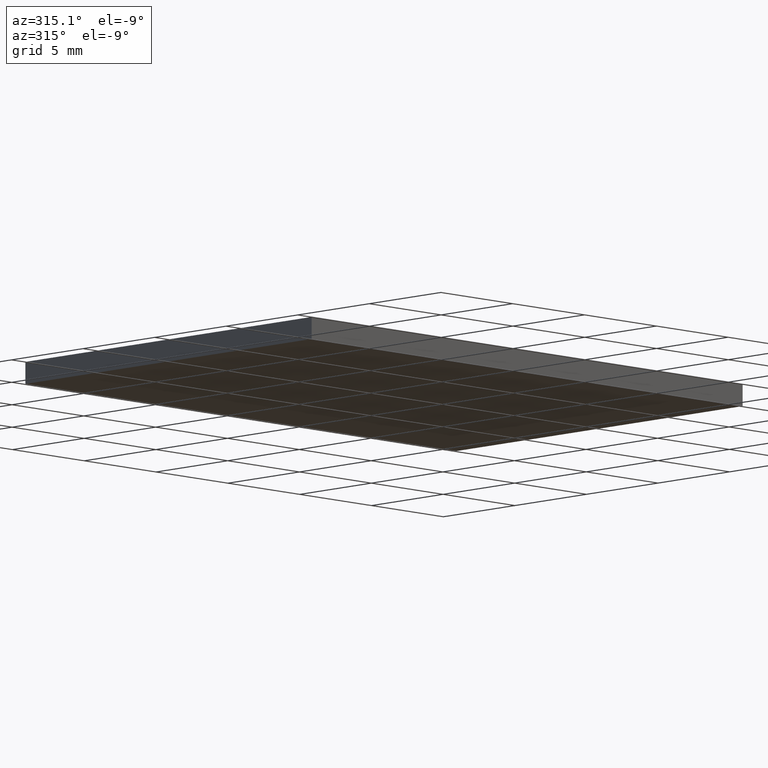
[diagram: clean part render]
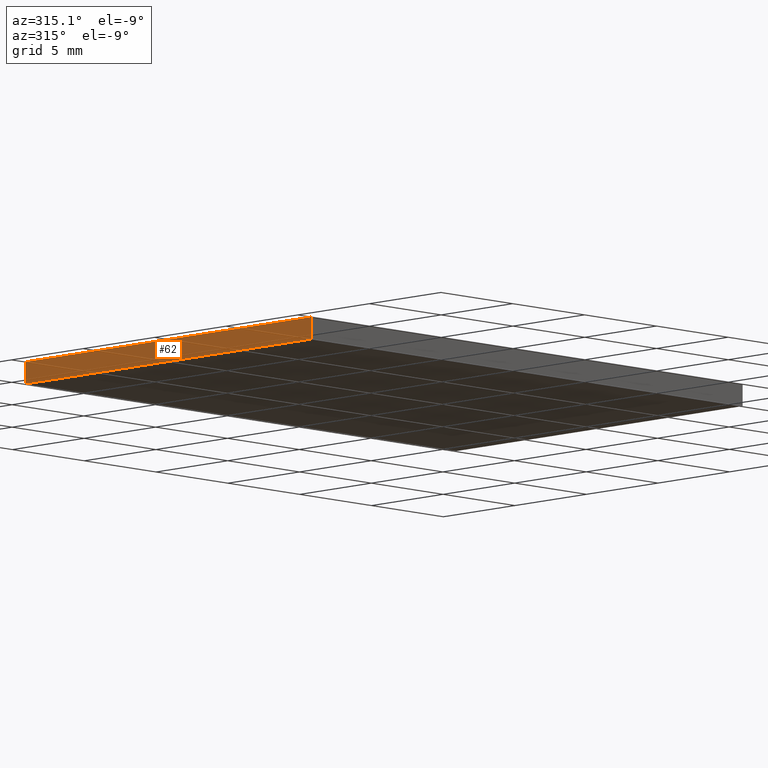
[diagram: same view with one face highlighted and labeled with its STEP entity id]
A machine part, auxiliary view. The second image highlights one B-rep face of the part: STEP entity #62.
In plain terms, the highlighted planar face has unit normal (1, 0, -0).
Its self-contained STEP definition (entity closure, byte-faithful):
#6 = VECTOR ( 'NONE', #92, 1000.000000000000000 ) ;
#9 = ORIENTED_EDGE ( 'NONE', *, *, #57, .T. ) ;
#17 = DIRECTION ( 'NONE',  ( 1.734723475976807100E-016, -1.000000000000000000, 0.0000000000000000000 ) ) ;
#20 = LINE ( 'NONE', #176, #279 ) ;
#21 = EDGE_CURVE ( 'NONE', #289, #79, #159, .T. ) ;
#23 = CARTESIAN_POINT ( 'NONE',  ( -11.75128678603609700, 12.30936728662558900, 1.100000000000000100 ) ) ;
#56 = VECTOR ( 'NONE', #221, 1000.000000000000000 ) ;
#57 = EDGE_CURVE ( 'NONE', #66, #225, #205, .T. ) ;
#62 = ADVANCED_FACE ( 'NONE', ( #303 ), #267, .F. ) ;
#66 = VERTEX_POINT ( 'NONE', #142 ) ;
#67 = ORIENTED_EDGE ( 'NONE', *, *, #21, .F. ) ;
#79 = VERTEX_POINT ( 'NONE', #272 ) ;
#87 = ORIENTED_EDGE ( 'NONE', *, *, #157, .T. ) ;
#92 = DIRECTION ( 'NONE',  ( 1.734723475976807100E-016, -1.000000000000000000, 0.0000000000000000000 ) ) ;
#94 = DIRECTION ( 'NONE',  ( -1.734723475976806800E-016, 1.000000000000000000, 0.0000000000000000000 ) ) ;
#102 = CARTESIAN_POINT ( 'NONE',  ( -11.75128678603609300, -7.690632713374410100, 1.100000000000000100 ) ) ;
#117 = DIRECTION ( 'NONE',  ( 1.000000000000000000, 1.734723475976806800E-016, -0.0000000000000000000 ) ) ;
#119 = CARTESIAN_POINT ( 'NONE',  ( -11.75128678603609300, -7.690632713374410100, 1.100000000000000100 ) ) ;
#142 = CARTESIAN_POINT ( 'NONE',  ( -11.75128678603609700, 12.30936728662558900, 1.100000000000000100 ) ) ;
#144 = EDGE_LOOP ( 'NONE', ( #87, #67, #189, #9 ) ) ;
#157 = EDGE_CURVE ( 'NONE', #225, #79, #20, .T. ) ;
#159 = LINE ( 'NONE', #119, #197 ) ;
#165 = LINE ( 'NONE', #23, #6 ) ;
#176 = CARTESIAN_POINT ( 'NONE',  ( -11.75128678603609700, 12.30936728662558900, 0.0000000000000000000 ) ) ;
#178 = EDGE_CURVE ( 'NONE', #66, #289, #165, .T. ) ;
#189 = ORIENTED_EDGE ( 'NONE', *, *, #178, .F. ) ;
#197 = VECTOR ( 'NONE', #294, 1000.000000000000000 ) ;
#205 = LINE ( 'NONE', #244, #56 ) ;
#221 = DIRECTION ( 'NONE',  ( -0.0000000000000000000, -0.0000000000000000000, -1.000000000000000000 ) ) ;
#224 = AXIS2_PLACEMENT_3D ( 'NONE', #311, #117, #94 ) ;
#225 = VERTEX_POINT ( 'NONE', #269 ) ;
#244 = CARTESIAN_POINT ( 'NONE',  ( -11.75128678603609700, 12.30936728662558900, 1.100000000000000100 ) ) ;
#267 = PLANE ( 'NONE',  #224 ) ;
#269 = CARTESIAN_POINT ( 'NONE',  ( -11.75128678603609700, 12.30936728662558900, 0.0000000000000000000 ) ) ;
#272 = CARTESIAN_POINT ( 'NONE',  ( -11.75128678603609300, -7.690632713374410100, 0.0000000000000000000 ) ) ;
#279 = VECTOR ( 'NONE', #17, 1000.000000000000000 ) ;
#289 = VERTEX_POINT ( 'NONE', #102 ) ;
#294 = DIRECTION ( 'NONE',  ( -0.0000000000000000000, -0.0000000000000000000, -1.000000000000000000 ) ) ;
#303 = FACE_OUTER_BOUND ( 'NONE', #144, .T. ) ;
#311 = CARTESIAN_POINT ( 'NONE',  ( -11.75128678603609700, 12.30936728662558900, 1.100000000000000100 ) ) ;